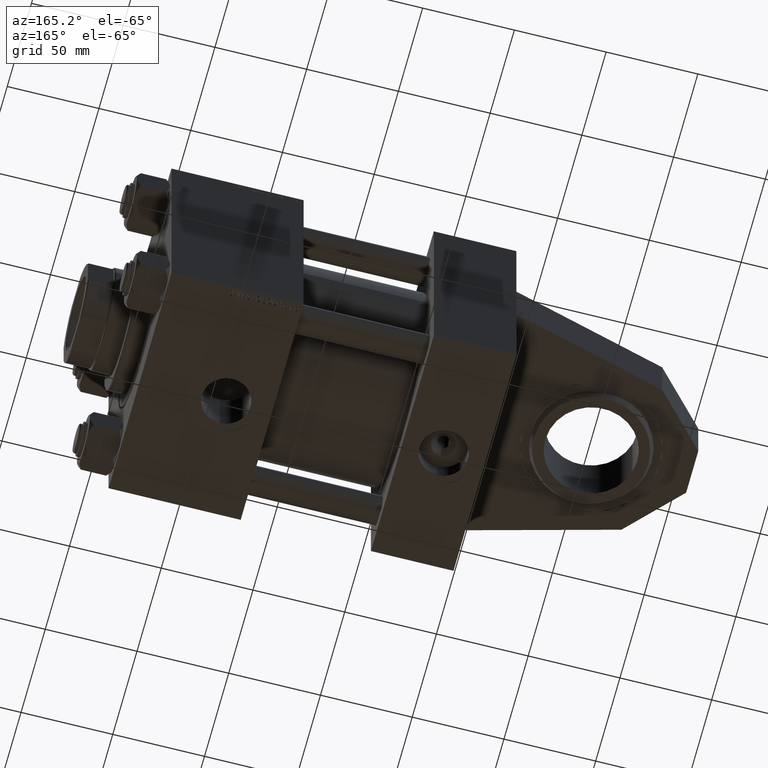
[diagram: clean part render]
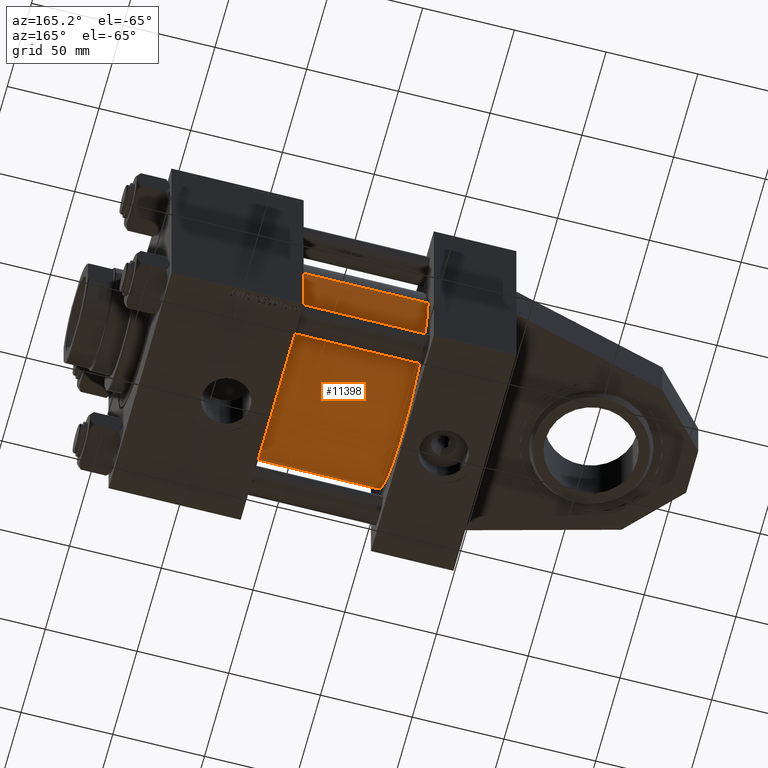
[diagram: same view with one face highlighted and labeled with its STEP entity id]
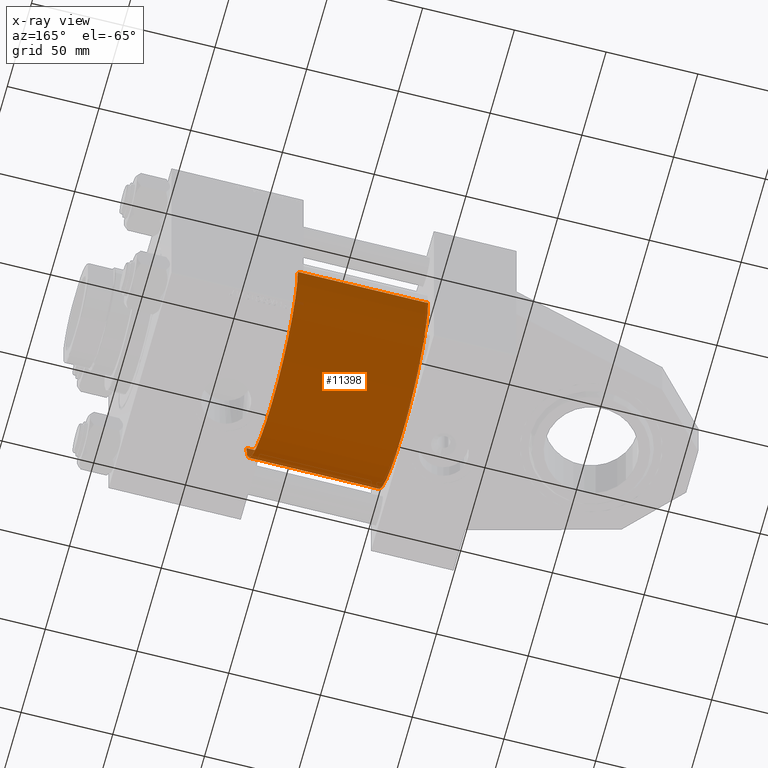
[diagram: x-ray of the same camera — body ghosted, the highlighted face saturated]
A machine part, auxiliary view. The second image highlights one B-rep face of the part: STEP entity #11398.
The next image is the same camera in x-ray: the body ghosted, the highlighted face saturated — about 0% of this face is hidden behind the body in this view.
In plain terms, the highlighted cylindrical surface (partial cylindrical patch) has radius 53 mm, axis along (-1, 0, -0).
Its self-contained STEP definition (entity closure, byte-faithful):
#2904 = VERTEX_POINT ( 'NONE', #37169 ) ;
#5936 = CARTESIAN_POINT ( 'NONE',  ( 45.00000000000000000, 3.888542821515762466E-15, -53.00000000000000711 ) ) ;
#7665 = CYLINDRICAL_SURFACE ( 'NONE', #21152, 53.00000000000000711 ) ;
#9946 = CARTESIAN_POINT ( 'NONE',  ( 115.9999999999999858, -2.602085213965210642E-15, 53.00000000000000711 ) ) ;
#11398 = ADVANCED_FACE ( 'NONE', ( #51911 ), #7665, .T. ) ;
#13559 = VECTOR ( 'NONE', #34470, 1000.000000000000000 ) ;
#14912 = CARTESIAN_POINT ( 'NONE',  ( 45.00000000000000000, -2.602085213965210642E-15, 53.00000000000000711 ) ) ;
#15347 = EDGE_CURVE ( 'NONE', #45151, #21575, #30378, .T. ) ;
#17599 = EDGE_CURVE ( 'NONE', #2904, #45151, #29275, .T. ) ;
#18206 = CARTESIAN_POINT ( 'NONE',  ( 115.9999999999999858, -2.602085213965210642E-15, 0.000000000000000000 ) ) ;
#18618 = DIRECTION ( 'NONE',  ( -1.000000000000000000, -0.000000000000000000, -0.000000000000000000 ) ) ;
#19023 = AXIS2_PLACEMENT_3D ( 'NONE', #18206, #22987, #50958 ) ;
#21152 = AXIS2_PLACEMENT_3D ( 'NONE', #38859, #18618, #34871 ) ;
#21575 = VERTEX_POINT ( 'NONE', #5936 ) ;
#22481 = LINE ( 'NONE', #9946, #13559 ) ;
#22987 = DIRECTION ( 'NONE',  ( 1.000000000000000000, 0.000000000000000000, 0.000000000000000000 ) ) ;
#25487 = EDGE_CURVE ( 'NONE', #36530, #21575, #37918, .T. ) ;
#28786 = DIRECTION ( 'NONE',  ( 1.000000000000000000, -0.000000000000000000, 0.000000000000000000 ) ) ;
#29275 = CIRCLE ( 'NONE', #19023, 53.00000000000000711 ) ;
#29765 = DIRECTION ( 'NONE',  ( 0.000000000000000000, 0.000000000000000000, 1.000000000000000000 ) ) ;
#30285 = CARTESIAN_POINT ( 'NONE',  ( 45.00000000000000000, -2.602085213965210642E-15, 0.000000000000000000 ) ) ;
#30378 = LINE ( 'NONE', #33855, #50394 ) ;
#31704 = ORIENTED_EDGE ( 'NONE', *, *, #25487, .T. ) ;
#32259 = ORIENTED_EDGE ( 'NONE', *, *, #47218, .T. ) ;
#33711 = AXIS2_PLACEMENT_3D ( 'NONE', #30285, #28786, #29765 ) ;
#33855 = CARTESIAN_POINT ( 'NONE',  ( 115.9999999999999858, 3.888542821515762466E-15, -53.00000000000000711 ) ) ;
#34470 = DIRECTION ( 'NONE',  ( -1.000000000000000000, -0.000000000000000000, -0.000000000000000000 ) ) ;
#34617 = ORIENTED_EDGE ( 'NONE', *, *, #17599, .F. ) ;
#34871 = DIRECTION ( 'NONE',  ( 0.000000000000000000, 0.000000000000000000, 1.000000000000000000 ) ) ;
#35440 = ORIENTED_EDGE ( 'NONE', *, *, #15347, .F. ) ;
#36530 = VERTEX_POINT ( 'NONE', #14912 ) ;
#37169 = CARTESIAN_POINT ( 'NONE',  ( 115.9999999999999858, -2.602085213965210642E-15, 53.00000000000000711 ) ) ;
#37593 = DIRECTION ( 'NONE',  ( -1.000000000000000000, -0.000000000000000000, -0.000000000000000000 ) ) ;
#37918 = CIRCLE ( 'NONE', #33711, 53.00000000000000711 ) ;
#38859 = CARTESIAN_POINT ( 'NONE',  ( 115.9999999999999858, -2.602085213965210642E-15, 0.000000000000000000 ) ) ;
#43415 = EDGE_LOOP ( 'NONE', ( #35440, #34617, #32259, #31704 ) ) ;
#45151 = VERTEX_POINT ( 'NONE', #47743 ) ;
#47218 = EDGE_CURVE ( 'NONE', #2904, #36530, #22481, .T. ) ;
#47743 = CARTESIAN_POINT ( 'NONE',  ( 115.9999999999999858, 3.888542821515762466E-15, -53.00000000000000711 ) ) ;
#50394 = VECTOR ( 'NONE', #37593, 1000.000000000000000 ) ;
#50958 = DIRECTION ( 'NONE',  ( 0.000000000000000000, 0.000000000000000000, -1.000000000000000000 ) ) ;
#51911 = FACE_OUTER_BOUND ( 'NONE', #43415, .T. ) ;